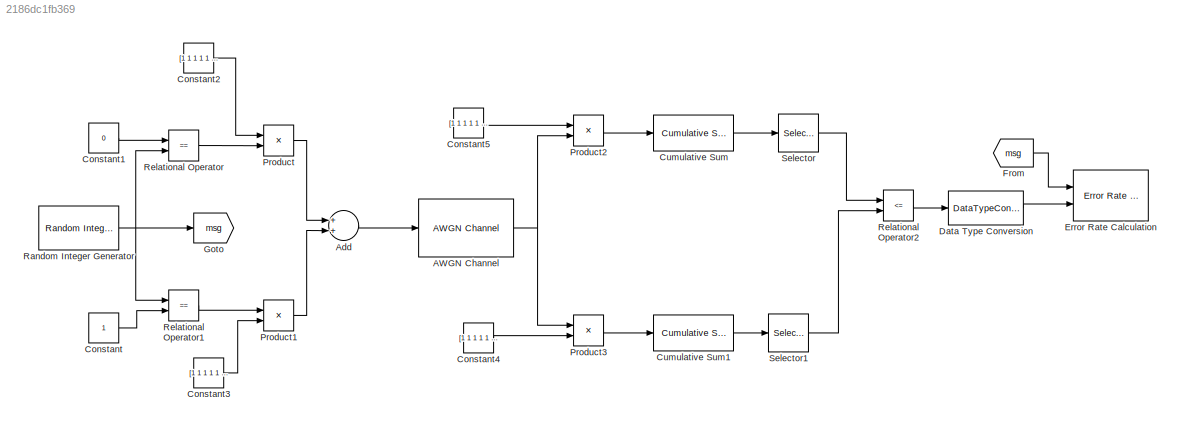
MODEL slx_2186dc1fb369
KIND model
BLOCK [Reference] AWGN Channel  REF=commchan3/AWGN
Channel
  EbNodB = SNR
  EsNodB = 10
  InputProcessing = Inherited (this choice will be removed - see release notes)
  Ports = [1, 1]
  Ps = 1
  SNRdB = 10
  SourceBlock = commchan3/AWGN\nChannel
  SourceType = AWGN Channel
  Tsym = 1
  UserDataPersistent = on
  bitsPerSym = 1
  noiseMode = Signal to noise ratio  (Eb/No)
  seed = 345
  variance = 1
BLOCK [Sum] Add
  InputSameDT = off
  OutDataTypeStr = Inherit: Inherit via internal rule
  Ports = [2, 1]
  SaturateOnIntegerOverflow = off
BLOCK [Constant] Constant
BLOCK [Constant] Constant1
  Value = 0
BLOCK [Constant] Constant2
  SampleTime = 0.1
  Value = [1 1 1 1 1 1 1 1 1 1]
BLOCK [Constant] Constant3
  SampleTime = 0.1
  Value = [1 1 1 1 1 -1 -1 -1 -1 -1]
BLOCK [Constant] Constant4
  Value = [1 1 1 1 1 -1 -1 -1 -1 -1]
BLOCK [Constant] Constant5
  Value = [1 1 1 1 1 1 1 1 1 1]
BLOCK [Reference] Cumulative Sum  REF=dspmathops/Cumulative
Sum
  InputProcessing = Columns as channels (frame based)
  LockScale = off
  Ports = [1, 1]
  SourceBlock = dspmathops/Cumulative\nSum
  SourceType = Cumulative Sum
  UserDataPersistent = on
  accumDataTypeStr = Inherit: Same as input
  accumFracLength = 30
  accumLastDataTypeStr = Inherit: Same as input
  accumMode = Same as input
  accumWordLength = 32
  dim = Rows
  outputDataTypeStr = Inherit: Same as accumulator
  outputFracLength = 15
  outputLastDataTypeStr = Inherit: Same as accumulator
  outputMax = []
  outputMin = []
  outputMode = Same as accumulator
  outputWordLength = 16
  overflowMode = off
  reset_popup = None
  roundingMode = Floor
BLOCK [Reference] Cumulative Sum1  REF=dspmathops/Cumulative
Sum
  InputProcessing = Columns as channels (frame based)
  LockScale = off
  Ports = [1, 1]
  SourceBlock = dspmathops/Cumulative\nSum
  SourceType = Cumulative Sum
  UserDataPersistent = on
  accumDataTypeStr = Inherit: Same as input
  accumFracLength = 30
  accumLastDataTypeStr = Inherit: Same as input
  accumMode = Same as input
  accumWordLength = 32
  dim = Rows
  outputDataTypeStr = Inherit: Same as accumulator
  outputFracLength = 15
  outputLastDataTypeStr = Inherit: Same as accumulator
  outputMax = []
  outputMin = []
  outputMode = Same as accumulator
  outputWordLength = 16
  overflowMode = off
  reset_popup = None
  roundingMode = Floor
BLOCK [DataTypeConversion] Data Type Conversion
  OutDataTypeStr = double
  RndMeth = Floor
  SaturateOnIntegerOverflow = off
BLOCK [Reference] Error Rate Calculation  REF=commsink2/Error Rate
Calculation
  N = 0
  PMode = Workspace
  Ports = [2]
  RsMode2 = off
  SourceBlock = commsink2/Error Rate\nCalculation
  SourceType = Error Rate Calculation
  WsName = BER
  cp_mode = Entire frame
  maxBits = 1e6
  numErr = 100
  st_delay = 0
  stop = off
  subframe = []
BLOCK [From] From
  GotoTag = msg
BLOCK [Goto] Goto
  GotoTag = msg
BLOCK [Product] Product
  InputSameDT = off
  OutDataTypeStr = Inherit: Inherit via internal rule
  Ports = [2, 1]
  RndMeth = Floor
  SaturateOnIntegerOverflow = off
BLOCK [Product] Product1
  InputSameDT = off
  OutDataTypeStr = Inherit: Inherit via internal rule
  Ports = [2, 1]
  RndMeth = Floor
  SaturateOnIntegerOverflow = off
BLOCK [Product] Product2
  InputSameDT = off
  OutDataTypeStr = Inherit: Inherit via internal rule
  Ports = [2, 1]
  RndMeth = Floor
  SaturateOnIntegerOverflow = off
BLOCK [Product] Product3
  InputSameDT = off
  OutDataTypeStr = Inherit: Inherit via internal rule
  Ports = [2, 1]
  RndMeth = Floor
  SaturateOnIntegerOverflow = off
BLOCK [Reference] Random Integer Generator  REF=commrandsrc2/Random Integer
Generator
  Ports = [0, 1]
  SourceBlock = commrandsrc2/Random Integer\nGenerator
  SourceType = Random Integer Generator
  Ts = 1
  frameBased = off
  mul = 2
  orient = off
  outDataType = double
  sampPerFrame = 1
  seed = 1234
BLOCK [RelationalOperator] Relational Operator
  InputSameDT = off
  Operator = ==
  OutDataTypeStr = boolean
  Ports = [2, 1]
BLOCK [RelationalOperator] Relational Operator1
  InputSameDT = off
  Operator = ==
  OutDataTypeStr = boolean
  Ports = [2, 1]
  ZeroCross = off
BLOCK [RelationalOperator] Relational Operator2
  InputSameDT = off
  Operator = <=
  OutDataTypeStr = boolean
  Ports = [2, 1]
BLOCK [Selector] Selector
  Indices = [10]
  InputPortWidth = 10
  Ports = [1, 1]
BLOCK [Selector] Selector1
  Indices = [10]
  InputPortWidth = 10
  Ports = [1, 1]
NET AWGN Channel:1 -> Product2:2, Product3:1
LINE Add:1 -> AWGN Channel:1
LINE Constant1:1 -> Relational Operator:1
LINE Constant2:1 -> Product:1
LINE Constant3:1 -> Product1:2
LINE Constant4:1 -> Product3:2
LINE Constant5:1 -> Product2:1
LINE Constant:1 -> Relational Operator1:2
LINE Cumulative Sum1:1 -> Selector1:1
LINE Cumulative Sum:1 -> Selector:1
LINE Data Type Conversion:1 -> Error Rate Calculation:2
LINE From:1 -> Error Rate Calculation:1
LINE Product1:1 -> Add:2
LINE Product2:1 -> Cumulative Sum:1
LINE Product3:1 -> Cumulative Sum1:1
LINE Product:1 -> Add:1
NET Random Integer Generator:1 -> Goto:1, Relational Operator1:1, Relational Operator:2
LINE Relational Operator1:1 -> Product1:1
LINE Relational Operator2:1 -> Data Type Conversion:1
LINE Relational Operator:1 -> Product:2
LINE Selector1:1 -> Relational Operator2:2
LINE Selector:1 -> Relational Operator2:1
note: NET lines group one-source signal fan-out (src -> all destinations, sorted); 1:1 wires keep LINE
